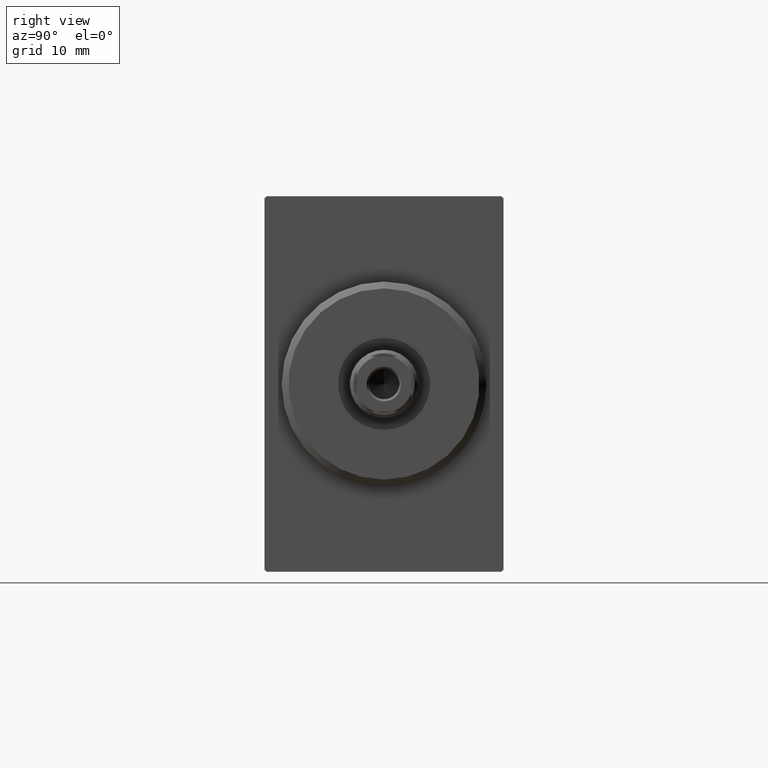
[diagram: clean part render]
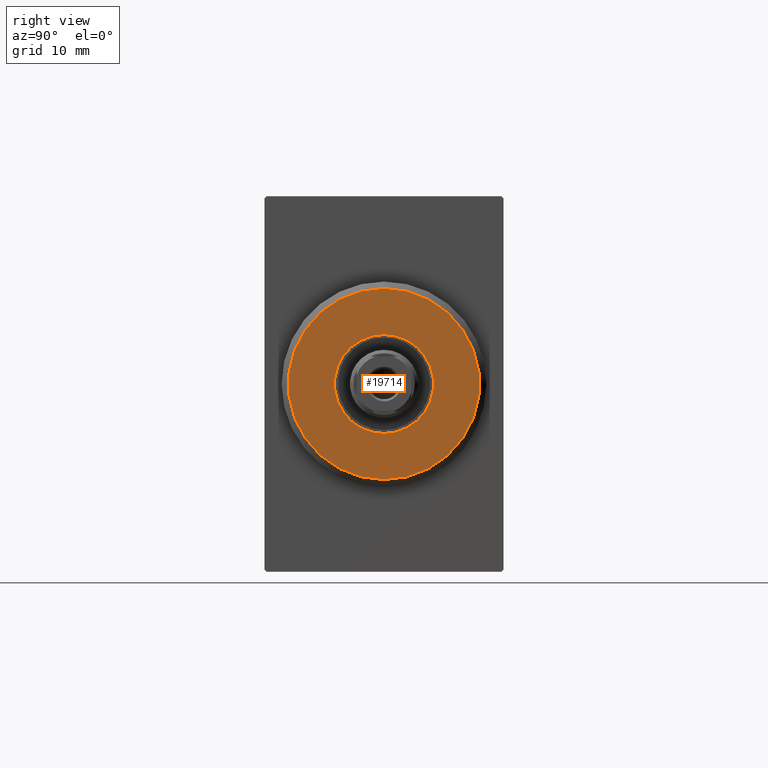
[diagram: same view with one face highlighted and labeled with its STEP entity id]
A machine part, right view. The second image highlights one B-rep face of the part: STEP entity #19714.
In plain terms, the highlighted planar face has unit normal (1, 0, 0).
Its self-contained STEP definition (entity closure, byte-faithful):
#29 = CARTESIAN_POINT ( 'NONE',  ( 3.000000000000000000, 0.000000000000000000, 0.000000000000000000 ) ) ;
#1913 = PLANE ( 'NONE',  #33518 ) ;
#2890 = CARTESIAN_POINT ( 'NONE',  ( 3.000000000000000000, 0.000000000000000000, -7.249999999999999112 ) ) ;
#3914 = EDGE_LOOP ( 'NONE', ( #20302, #21272 ) ) ;
#8465 = DIRECTION ( 'NONE',  ( 0.000000000000000000, 0.000000000000000000, -1.000000000000000000 ) ) ;
#11244 = EDGE_CURVE ( 'NONE', #15242, #14721, #31226, .T. ) ;
#12511 = EDGE_CURVE ( 'NONE', #16192, #41550, #34072, .T. ) ;
#14203 = DIRECTION ( 'NONE',  ( 1.000000000000000000, -0.000000000000000000, 0.000000000000000000 ) ) ;
#14721 = VERTEX_POINT ( 'NONE', #42607 ) ;
#15134 = AXIS2_PLACEMENT_3D ( 'NONE', #32428, #43125, #35712 ) ;
#15242 = VERTEX_POINT ( 'NONE', #37300 ) ;
#16192 = VERTEX_POINT ( 'NONE', #2890 ) ;
#18314 = CARTESIAN_POINT ( 'NONE',  ( 3.000000000000000000, 0.000000000000000000, 0.000000000000000000 ) ) ;
#19714 = ADVANCED_FACE ( 'NONE', ( #25111, #42416 ), #1913, .T. ) ;
#20302 = ORIENTED_EDGE ( 'NONE', *, *, #12511, .F. ) ;
#21014 = CARTESIAN_POINT ( 'NONE',  ( 3.000000000000000000, 0.000000000000000000, 0.000000000000000000 ) ) ;
#21272 = ORIENTED_EDGE ( 'NONE', *, *, #34100, .F. ) ;
#21709 = ORIENTED_EDGE ( 'NONE', *, *, #40964, .T. ) ;
#21887 = DIRECTION ( 'NONE',  ( 0.000000000000000000, 0.000000000000000000, -1.000000000000000000 ) ) ;
#23190 = AXIS2_PLACEMENT_3D ( 'NONE', #34810, #14203, #40939 ) ;
#23205 = DIRECTION ( 'NONE',  ( 1.000000000000000000, 0.000000000000000000, 0.000000000000000000 ) ) ;
#24068 = DIRECTION ( 'NONE',  ( 0.000000000000000000, 0.000000000000000000, -1.000000000000000000 ) ) ;
#25111 = FACE_OUTER_BOUND ( 'NONE', #25555, .T. ) ;
#25555 = EDGE_LOOP ( 'NONE', ( #21709, #31689 ) ) ;
#29527 = AXIS2_PLACEMENT_3D ( 'NONE', #29, #23205, #24068 ) ;
#31226 = CIRCLE ( 'NONE', #15134, 14.00000000000000355 ) ;
#31689 = ORIENTED_EDGE ( 'NONE', *, *, #11244, .T. ) ;
#32428 = CARTESIAN_POINT ( 'NONE',  ( 3.000000000000000000, 0.000000000000000000, 0.000000000000000000 ) ) ;
#33368 = AXIS2_PLACEMENT_3D ( 'NONE', #21014, #40960, #21887 ) ;
#33518 = AXIS2_PLACEMENT_3D ( 'NONE', #18314, #38484, #8465 ) ;
#34072 = CIRCLE ( 'NONE', #33368, 7.249999999999999112 ) ;
#34100 = EDGE_CURVE ( 'NONE', #41550, #16192, #38629, .T. ) ;
#34810 = CARTESIAN_POINT ( 'NONE',  ( 3.000000000000000000, 0.000000000000000000, 0.000000000000000000 ) ) ;
#35712 = DIRECTION ( 'NONE',  ( 0.000000000000000000, 0.000000000000000000, -1.000000000000000000 ) ) ;
#37300 = CARTESIAN_POINT ( 'NONE',  ( 3.000000000000000000, 1.775737858763662015E-15, -14.00000000000000355 ) ) ;
#38484 = DIRECTION ( 'NONE',  ( 1.000000000000000000, -0.000000000000000000, 0.000000000000000000 ) ) ;
#38629 = CIRCLE ( 'NONE', #29527, 7.249999999999999112 ) ;
#40939 = DIRECTION ( 'NONE',  ( 0.000000000000000000, 0.000000000000000000, -1.000000000000000000 ) ) ;
#40960 = DIRECTION ( 'NONE',  ( 1.000000000000000000, 0.000000000000000000, 0.000000000000000000 ) ) ;
#40964 = EDGE_CURVE ( 'NONE', #14721, #15242, #41397, .T. ) ;
#41397 = CIRCLE ( 'NONE', #23190, 14.00000000000000355 ) ;
#41550 = VERTEX_POINT ( 'NONE', #43048 ) ;
#42416 = FACE_BOUND ( 'NONE', #3914, .T. ) ;
#42607 = CARTESIAN_POINT ( 'NONE',  ( 3.000000000000000000, 0.000000000000000000, 14.00000000000000355 ) ) ;
#43048 = CARTESIAN_POINT ( 'NONE',  ( 3.000000000000000000, 8.878689293818310074E-16, 7.249999999999999112 ) ) ;
#43125 = DIRECTION ( 'NONE',  ( 1.000000000000000000, -0.000000000000000000, 0.000000000000000000 ) ) ;